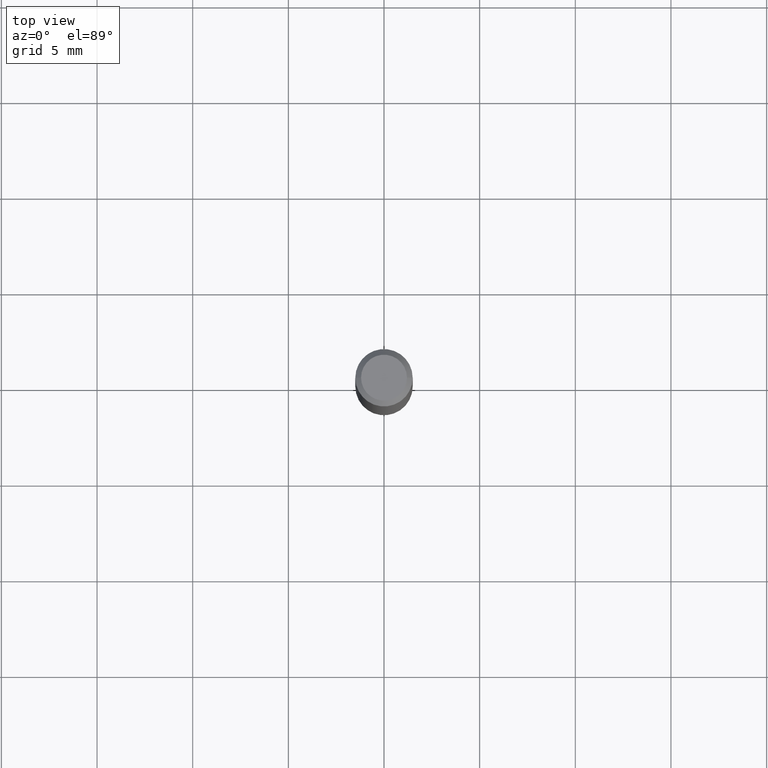
[diagram: clean part render]
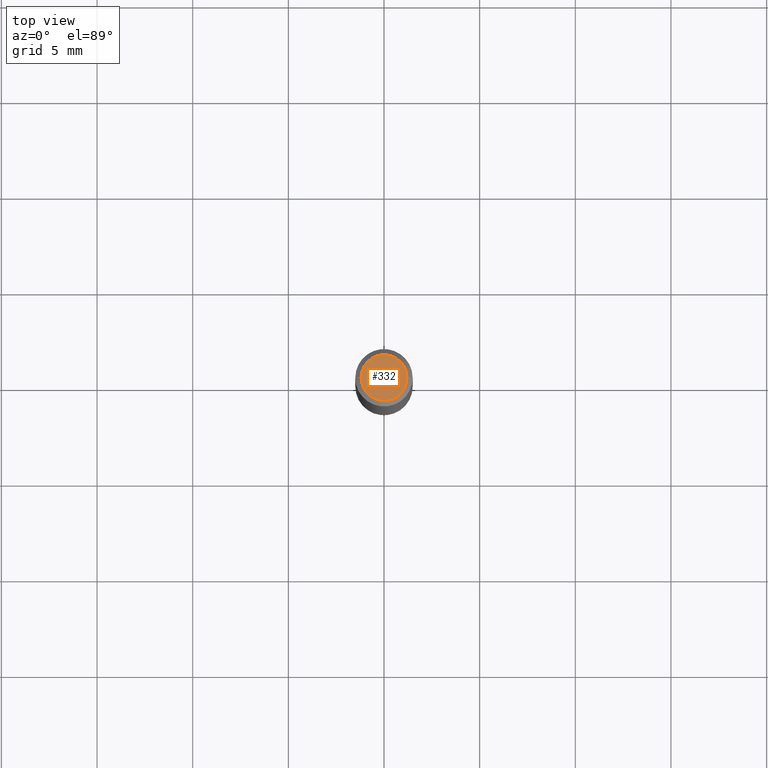
[diagram: same view with one face highlighted and labeled with its STEP entity id]
A machine part, top view. The second image highlights one B-rep face of the part: STEP entity #332.
In plain terms, the highlighted planar face has unit normal (0, -0, -1).
Its self-contained STEP definition (entity closure, byte-faithful):
#3 = AXIS2_PLACEMENT_3D ( 'NONE', #31, #407, #65 ) ;
#19 = CARTESIAN_POINT ( 'NONE',  ( 0.04724000000000000421, -3.852183633974369345E-16, -3.380025165621689721E-19 ) ) ;
#23 = CARTESIAN_POINT ( 'NONE',  ( 8.265746106709734507E-48, -1.180129479067563789E-33, -3.380025165646692144E-19 ) ) ;
#27 = EDGE_CURVE ( 'NONE', #219, #220, #99, .T. ) ;
#31 = CARTESIAN_POINT ( 'NONE',  ( 4.132873053354867254E-48, -5.900647395337818946E-34, -1.690012582823346072E-19 ) ) ;
#34 = ORIENTED_EDGE ( 'NONE', *, *, #27, .T. ) ;
#65 = DIRECTION ( 'NONE',  ( -1.000000000000000000, 6.982962677686265922E-15, -4.876176775795935793E-29 ) ) ;
#99 = CIRCLE ( 'NONE', #156, 0.04724000000000000421 ) ;
#140 = AXIS2_PLACEMENT_3D ( 'NONE', #23, #299, #329 ) ;
#154 = EDGE_LOOP ( 'NONE', ( #34, #271 ) ) ;
#156 = AXIS2_PLACEMENT_3D ( 'NONE', #380, #310, #230 ) ;
#219 = VERTEX_POINT ( 'NONE', #246 ) ;
#220 = VERTEX_POINT ( 'NONE', #19 ) ;
#226 = FACE_OUTER_BOUND ( 'NONE', #154, .T. ) ;
#230 = DIRECTION ( 'NONE',  ( 1.000000000000000000, -6.982962677686266711E-15, 4.876185090822587894E-29 ) ) ;
#246 = CARTESIAN_POINT ( 'NONE',  ( -0.04724000000000000421, 3.504923541997677355E-16, -3.380025165670481712E-19 ) ) ;
#271 = ORIENTED_EDGE ( 'NONE', *, *, #414, .T. ) ;
#299 = DIRECTION ( 'NONE',  ( -2.445468806185136597E-29, 3.491481338843145583E-15, 1.000000000000000000 ) ) ;
#310 = DIRECTION ( 'NONE',  ( -2.445468806185136597E-29, 3.491481338843145583E-15, 1.000000000000000000 ) ) ;
#324 = CIRCLE ( 'NONE', #140, 0.04724000000000000421 ) ;
#329 = DIRECTION ( 'NONE',  ( 1.000000000000000000, -6.982962677686266711E-15, 4.876185090822587894E-29 ) ) ;
#332 = ADVANCED_FACE ( 'NONE', ( #226 ), #479, .F. ) ;
#380 = CARTESIAN_POINT ( 'NONE',  ( 8.265746106709734507E-48, -1.180129479067563789E-33, -3.380025165646692144E-19 ) ) ;
#407 = DIRECTION ( 'NONE',  ( 2.438088387897960049E-29, -3.491481338843145188E-15, -1.000000000000000000 ) ) ;
#414 = EDGE_CURVE ( 'NONE', #220, #219, #324, .T. ) ;
#479 = PLANE ( 'NONE',  #3 ) ;